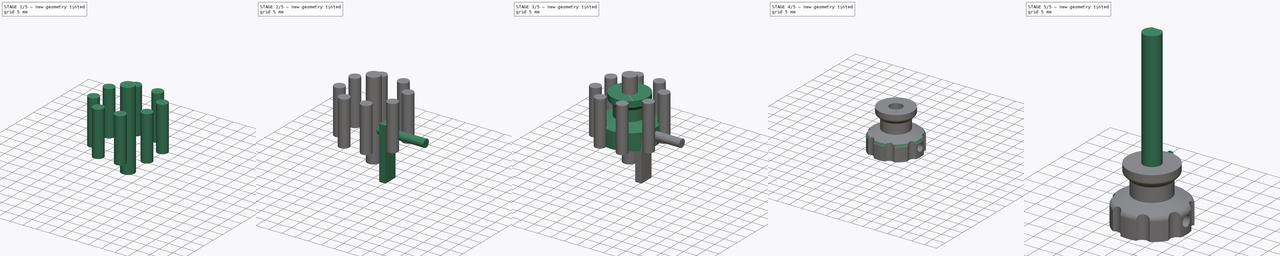
[diagram: build sequence overview — one tinted view per stage of 5, left to right]
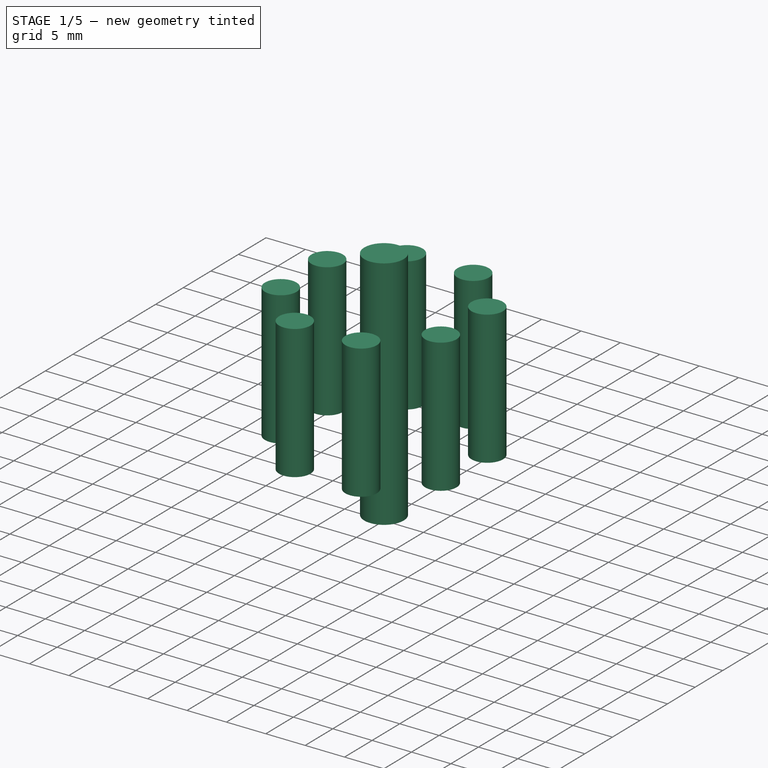
[diagram: stage 1 of 5 — iso view after this stage's code; geometry added in this stage tinted green]
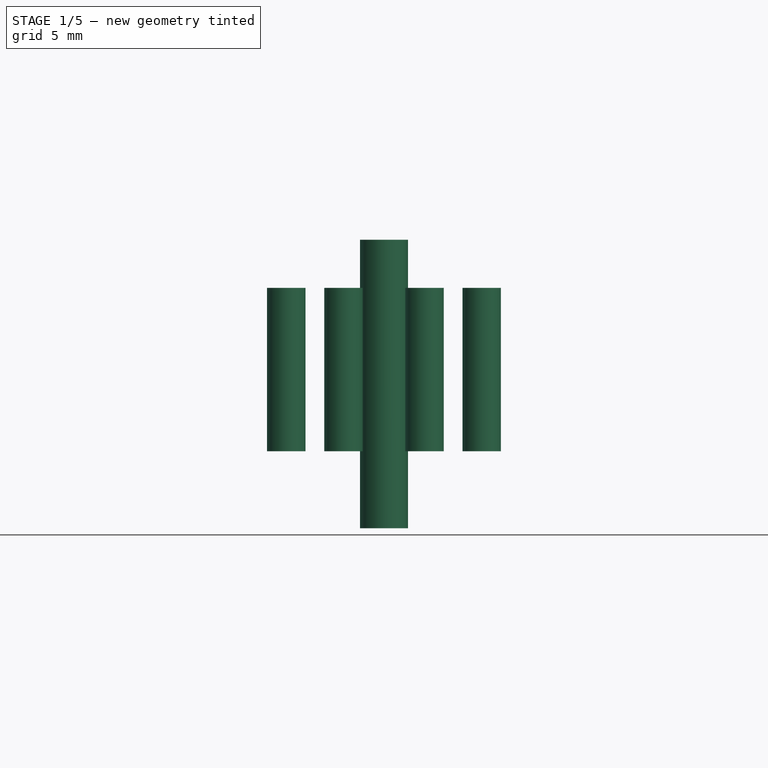
[diagram: stage 1 of 5 — front view after this stage's code; geometry added in this stage tinted green]
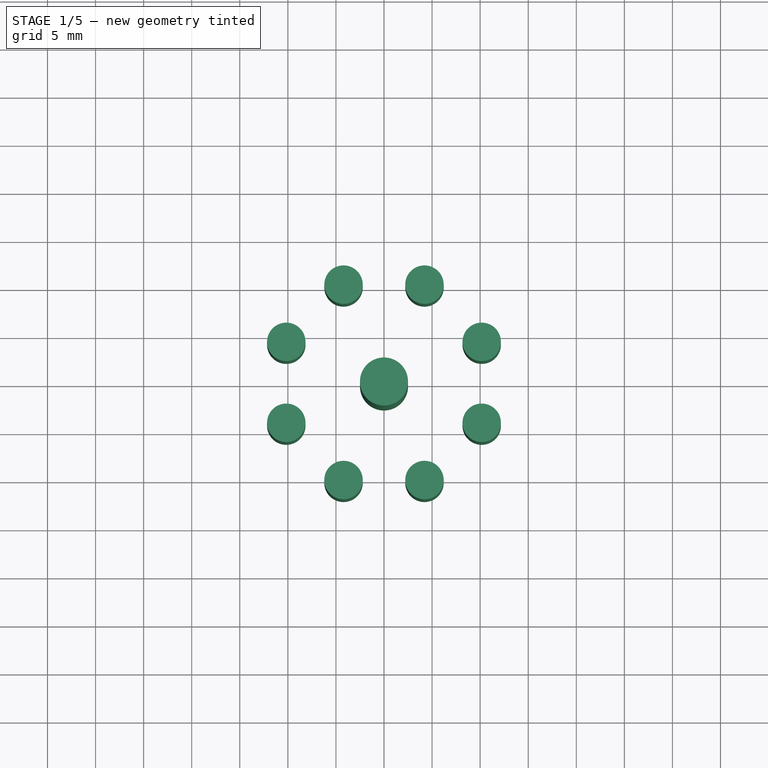
[diagram: stage 1 of 5 — top view after this stage's code; geometry added in this stage tinted green]
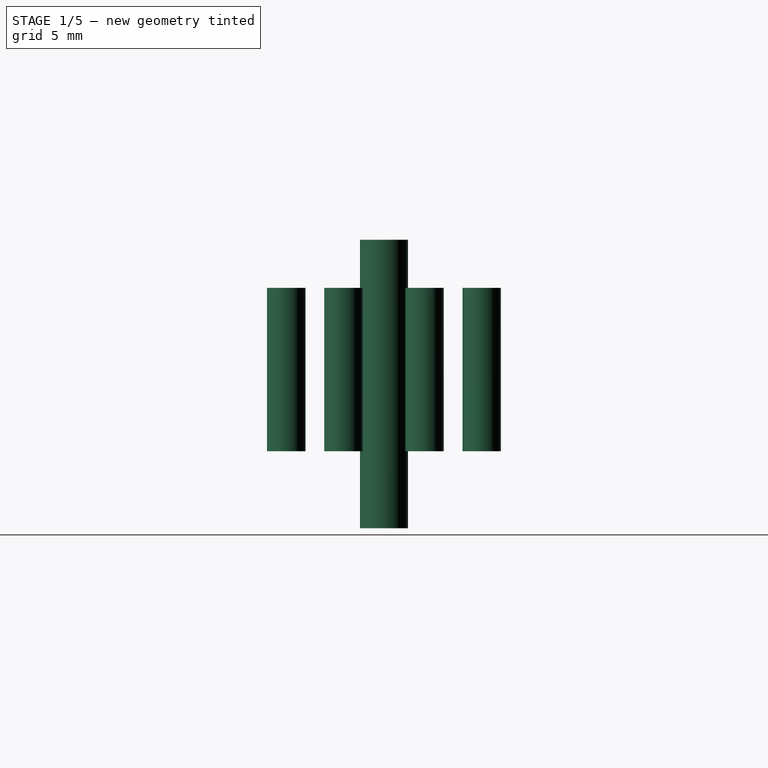
[diagram: stage 1 of 5 — right view after this stage's code; geometry added in this stage tinted green]
FCSTD DOCUMENT  (FreeCAD 0.16RUnknown)
Label: NEMAPulley
License: All rights reserved
LicenseURL: http://en.wikipedia.org/wiki/All_rights_reserved
objects: Part::FeaturePython×5, Part::Cylinder×3, Part::Extrusion×3, Sketcher::SketchObject×2, Part::Part2DObjectPython×2, App::DocumentObjectGroup×2, Part::Cut×2, Part::Box×1, PartDesign::Revolution×1, Part::Fillet×1, Part::MultiFuse×1
note: 22 computed .brp shape members not serialized (recipe doc carries the construction recipe); baked Part::Feature solids carry a one-line shape summary decoded from their .brp

FEATURE [Sketcher::SketchObject] Sketch001  label="BodyProfile"
  Placement = pos=(0,0,0) rot=(1,0,0;1.5708rad)
  sketch-geometry (9):
    g0: LineSegment StartX=0 StartY=16 StartZ=0 EndX=7 EndY=16 EndZ=0
    g1: LineSegment StartX=7 StartY=16 StartZ=0 EndX=7 EndY=13.6948 EndZ=0
    g2: LineSegment StartX=10 StartY=6.29122 StartZ=0 EndX=10 EndY=0 EndZ=0
    g3: LineSegment StartX=10 StartY=0 StartZ=0 EndX=0 EndY=0 EndZ=0
    g4: LineSegment StartX=0 StartY=0 StartZ=0 EndX=0 EndY=16 EndZ=0
    g5: LineSegment StartX=7 StartY=13.6948 StartZ=0 EndX=5.30516 EndY=12 EndZ=0
    g6: LineSegment StartX=5.30516 StartY=12 StartZ=0 EndX=5.30516 EndY=8 EndZ=0
    g7: LineSegment StartX=5.30516 StartY=8 StartZ=0 EndX=10 EndY=6.29122 EndZ=0
    g8: GeomPoint [constr] X=5.30516 Y=10 Z=0
  constraints (25):
    c: Coincident(g0,g1)
    c: Coincident(g2,g3)
    c: Coincident(g3,g4)
    c: Coincident(g4,g0)
    c: Vertical(g4)
    c: Vertical(g1)
    c: Vertical(g2)
    c: Horizontal(g3)
    c: Horizontal(g0)
    c: PointOnObject(g0,g-2)
    c: Coincident(g3,g-1)
    c: DistanceY(g4) = 16
    c: DistanceX(g3,g3) = 10
    c: Coincident(g5,g6)
    c: Coincident(g6,g7)
    c: Coincident(g7,g2)
    c: Coincident(g5,g1)
    c: Vertical(g6)
    c: Symmetric(g5,g6,g8)
    c: DistanceX(g8) = 5.30516
    c: DistanceY(g8) = 10
    c: DistanceY(g6,g6) = 4
    c: DistanceX(g0,g0) = 7
    c: Angle(g1,g5) = 2.35619
    c: Angle(g7) = -0.349066
FEATURE [Part::Cylinder] Cylinder001  label="NEMAShaft"
  Angle = 360
  Height = 30
  Placement = pos=(0,0,-8) rot=(0,0,1;0rad)
  Radius = 2.5
FEATURE [Part::Cylinder] Cylinder  label="FingerGroove"
  Angle = 360
  Height = 17
  Placement = pos=(0,11,0) rot=(0,0,1;0rad)
  Radius = 2
FEATURE [Part::FeaturePython] Array  label="Grooves"  # Draft array (typed FeaturePython)
  Angle = 360
  ArrayType = 1
  Axis = (0,0,1)
  Base = -> Cylinder
  Center = (0,0,0)
  Fuse = false
  IntervalAxis = (0,0,0)
  IntervalX = (1,0,0)
  IntervalY = (0,1,0)
  IntervalZ = (0,0,0)
  NumberPolar = 8
  NumberX = 2
  NumberY = 2
  NumberZ = 1
  Placement = pos=(0,0,0) rot=(0,0,1;0.392699rad)
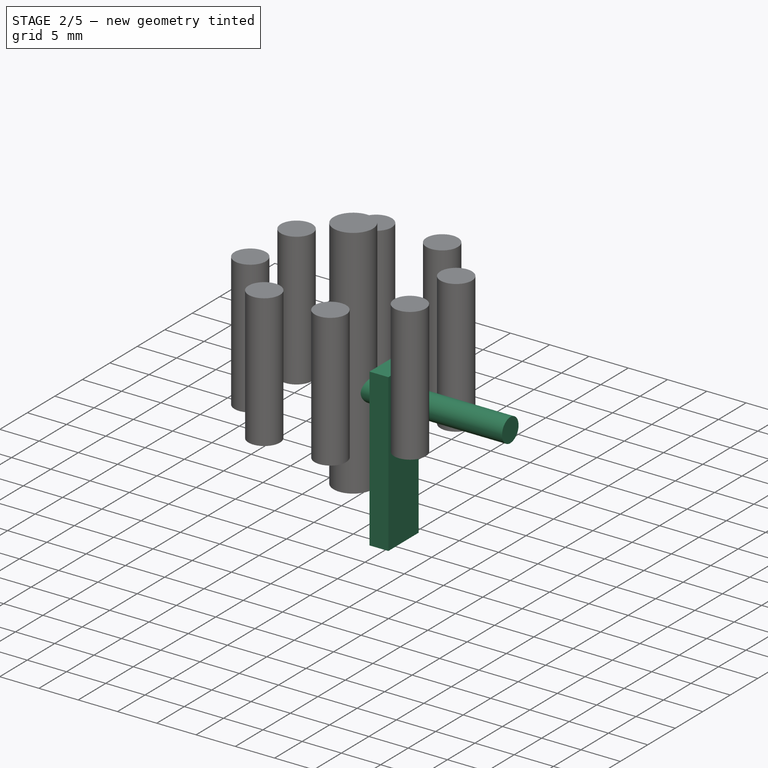
[diagram: stage 2 of 5 — iso view after this stage's code; geometry added in this stage tinted green]
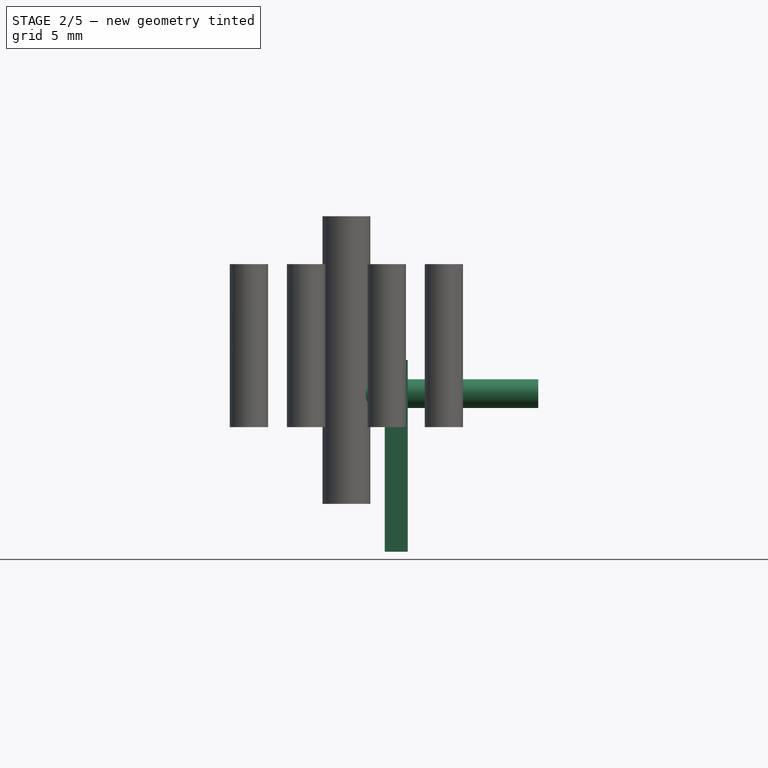
[diagram: stage 2 of 5 — front view after this stage's code; geometry added in this stage tinted green]
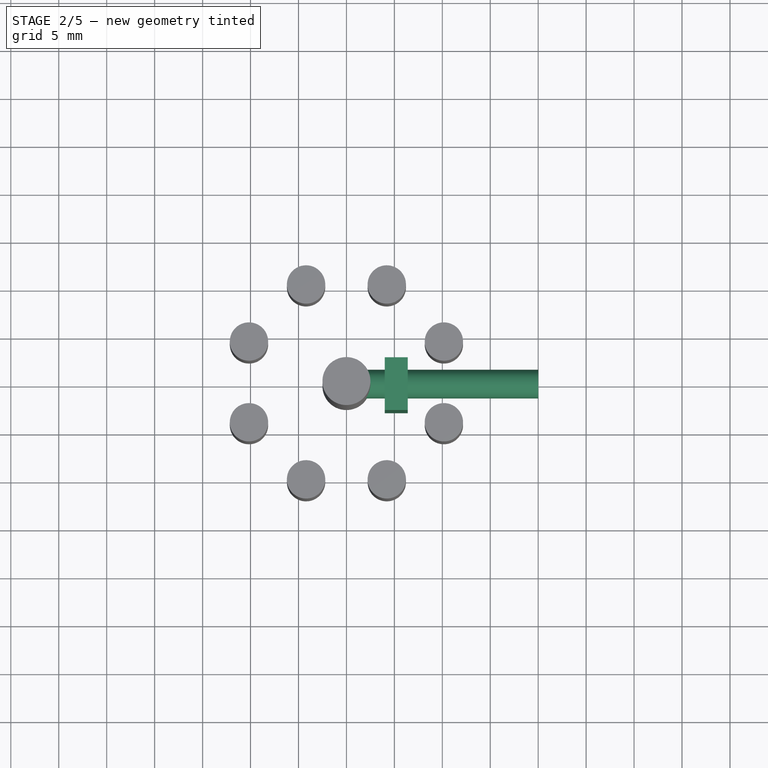
[diagram: stage 2 of 5 — top view after this stage's code; geometry added in this stage tinted green]
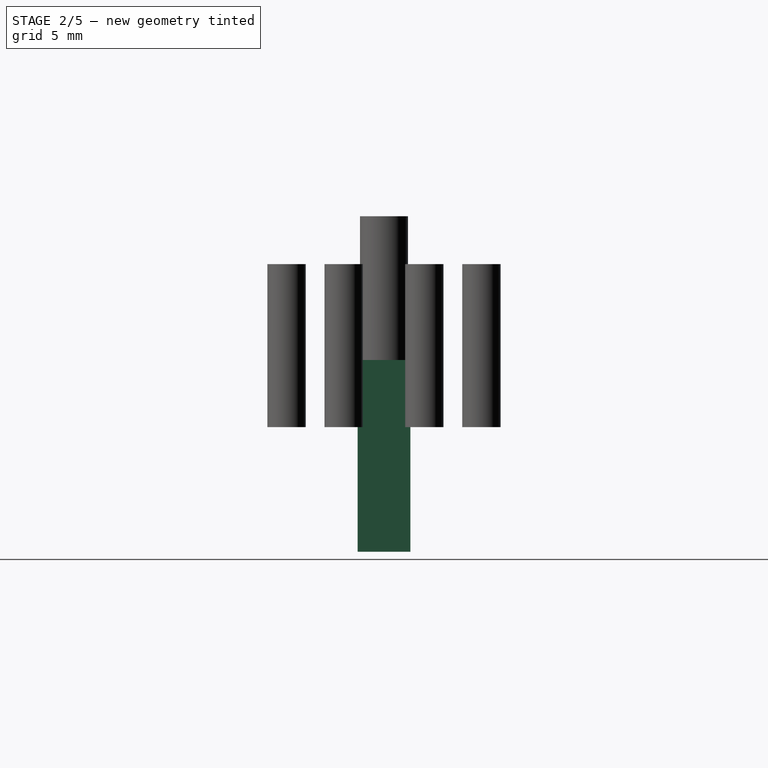
[diagram: stage 2 of 5 — right view after this stage's code; geometry added in this stage tinted green]
FEATURE [Part::Cylinder] Cylinder002  label="Bolt"
  Angle = 360
  Height = 20
  Placement = pos=(0,0,3.5) rot=(0,1,0;1.5708rad)
  Radius = 1.5
FEATURE [Part::Box] Box  label="NutSlot"
  Height = 20
  Length = 2.4
  Placement = pos=(4,-2.75,-13) rot=(0,0,1;0rad)
  Width = 5.5
FEATURE [Part::FeaturePython] Clone001  label="Clone of Bolt"  # Draft clone (typed FeaturePython)
  Objects = -> [Cylinder002]
  Placement = pos=(0,0,3.5) rot=(0,1,0;1.5708rad)
  Scale = (1,1,1)
FEATURE [Part::FeaturePython] Clone002  label="Clone of NEMAShaft"  # Draft clone (typed FeaturePython)
  Objects = -> [Cylinder001]
  Placement = pos=(0,0,-8) rot=(0,0,1;0rad)
  Scale = (1,1,1)
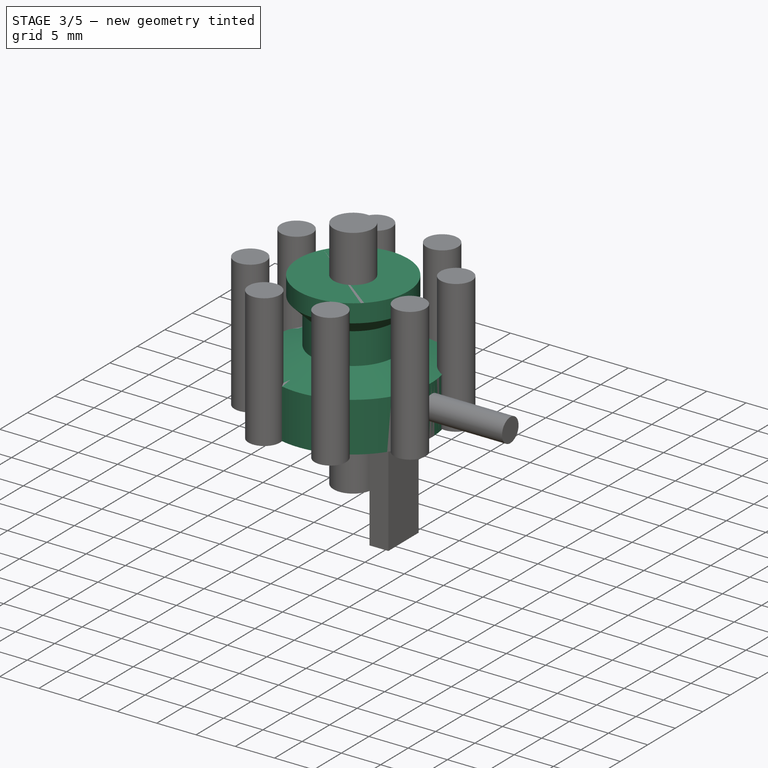
[diagram: stage 3 of 5 — iso view after this stage's code; geometry added in this stage tinted green]
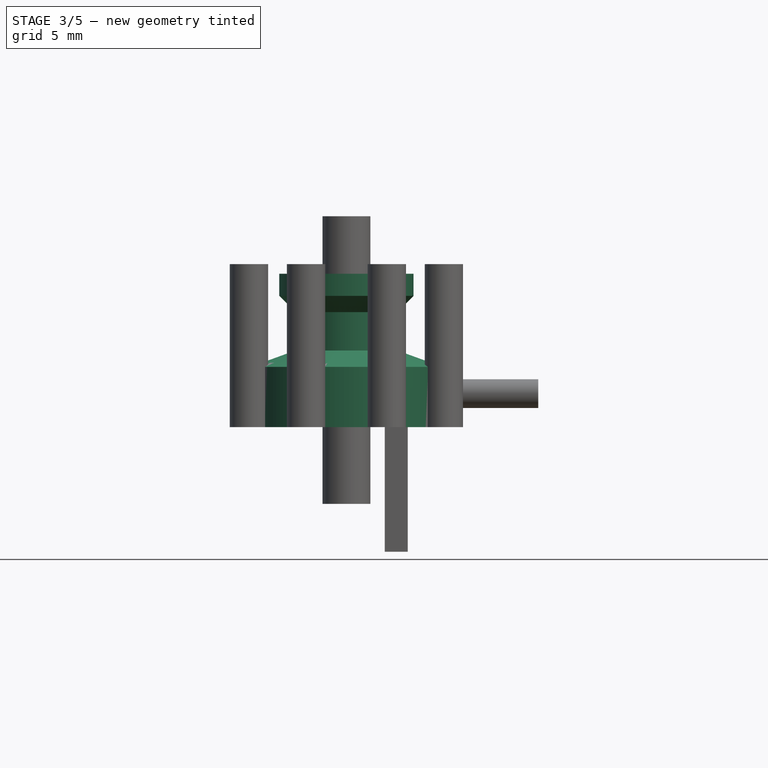
[diagram: stage 3 of 5 — front view after this stage's code; geometry added in this stage tinted green]
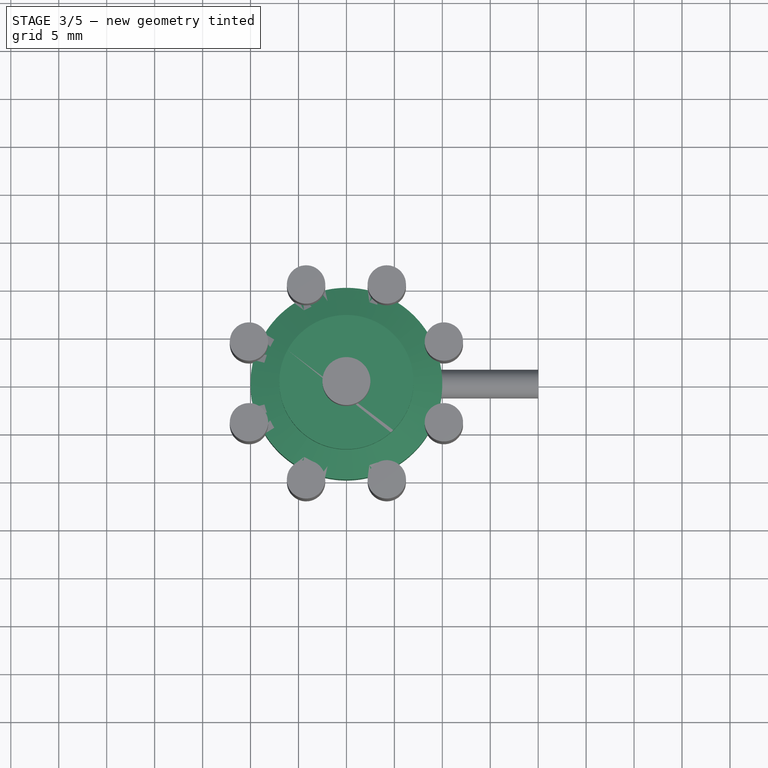
[diagram: stage 3 of 5 — top view after this stage's code; geometry added in this stage tinted green]
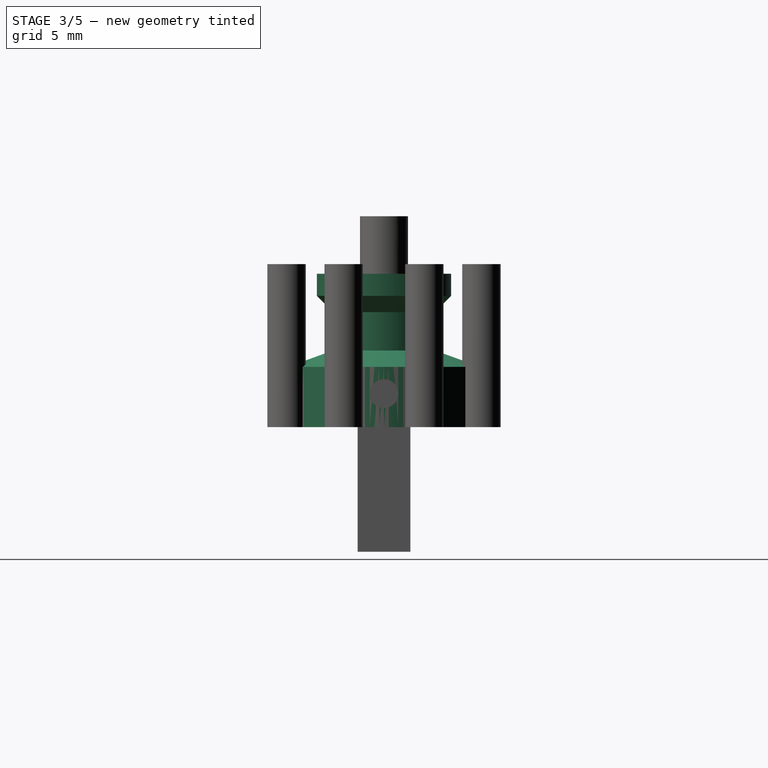
[diagram: stage 3 of 5 — right view after this stage's code; geometry added in this stage tinted green]
FEATURE [App::DocumentObjectGroup] Group  label="Cuts_src"
  Group = -> [Extrude002,Box,Cylinder002,Cylinder001,Extrude,Extrude001]
FEATURE [PartDesign::Revolution] Revolution  label="MainBody"
  Angle = 360
  Axis = (0,0,1)
  Base = (0,0,0)
  Placement = pos=(0,0,0) rot=(1,0,0;1.5708rad)
  ReferenceAxis = -> Sketch001 [V_Axis]
  Reversed = true
  Sketch = -> Sketch001
FEATURE [Part::FeaturePython] Clone  label="Clone of NutSlot"  # Draft clone (typed FeaturePython)
  Objects = -> [Box]
  Placement = pos=(4,-2.75,-13) rot=(0,0,1;0rad)
  Scale = (1,1,1)
FEATURE [Part::MultiFuse] Fusion  label="InnerCavity"
  Shapes = -> [Clone,Clone001,Clone002]
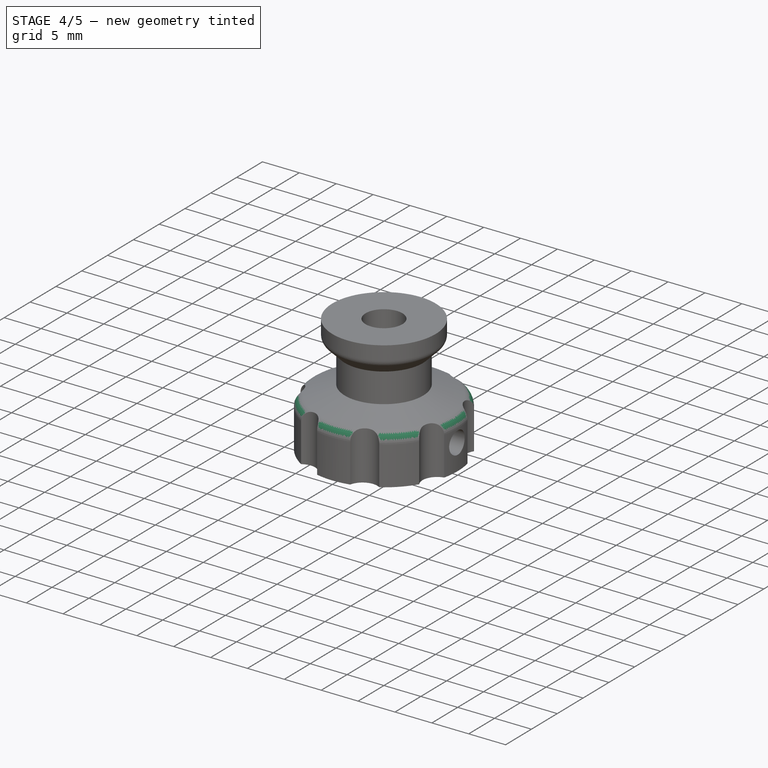
[diagram: stage 4 of 5 — iso view after this stage's code; geometry added in this stage tinted green]
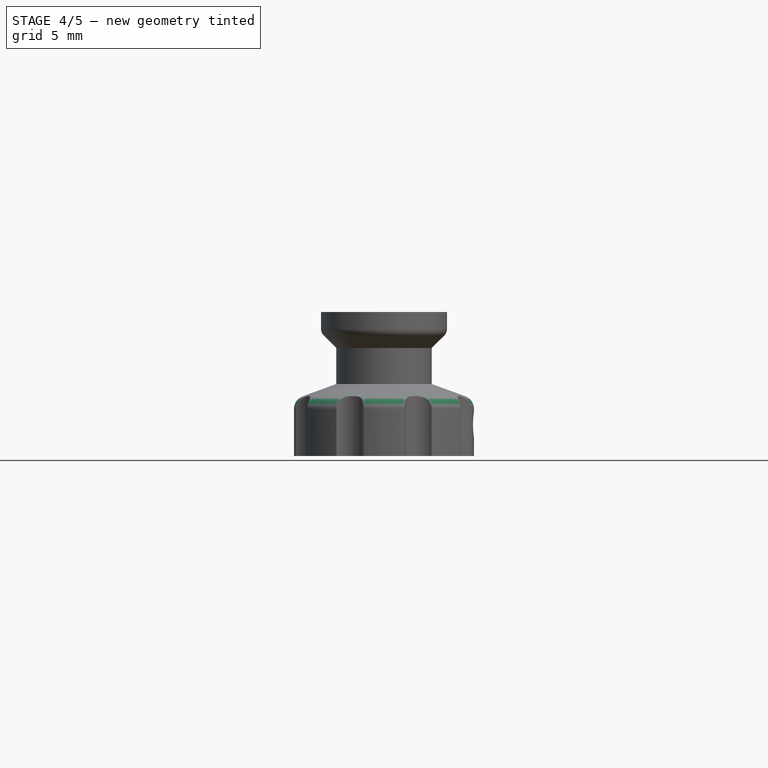
[diagram: stage 4 of 5 — front view after this stage's code; geometry added in this stage tinted green]
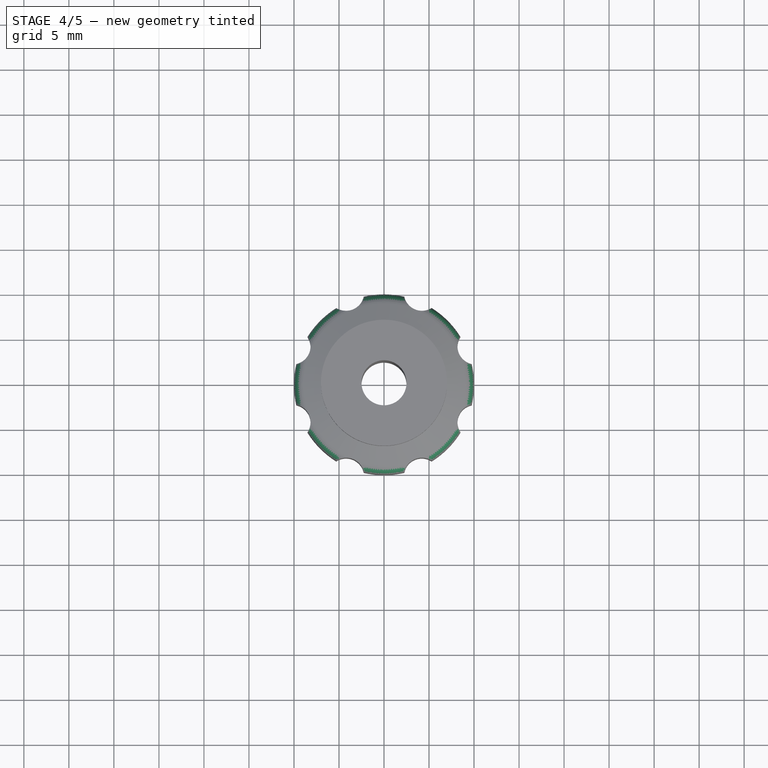
[diagram: stage 4 of 5 — top view after this stage's code; geometry added in this stage tinted green]
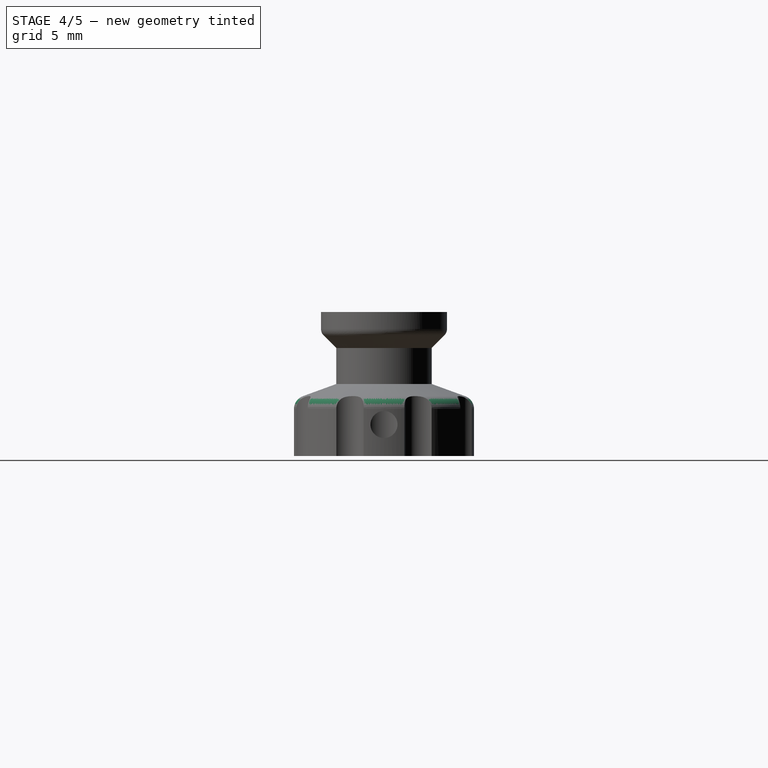
[diagram: stage 4 of 5 — right view after this stage's code; geometry added in this stage tinted green]
FEATURE [Part::Fillet] Fillet
  Base = -> Revolution
  Edges = 2 edges: [Edge2 r=1,Edge8 r=1.5]
FEATURE [Part::Cut] Cut  label="InnerCavityCut"
  Base = -> Fillet
  Tool = -> Fusion
FEATURE [Part::Cut] Cut003  label="GrooveCut"
  Base = -> Cut
  Tool = -> Array
FEATURE [App::DocumentObjectGroup] Group001  label="src"
  Group = -> [Cut003]
FEATURE [Part::FeaturePython] Clone003  label="NEMAPulley"  # Draft clone (typed FeaturePython)
  Objects = -> [Cut003]
  Scale = (1,1,1)
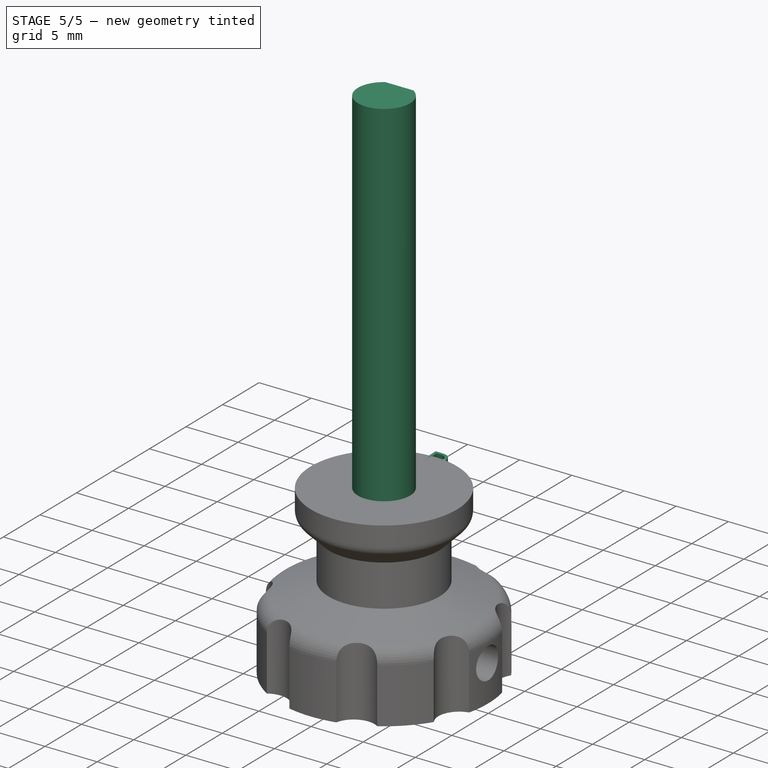
[diagram: stage 5 of 5 — iso view after this stage's code; geometry added in this stage tinted green]
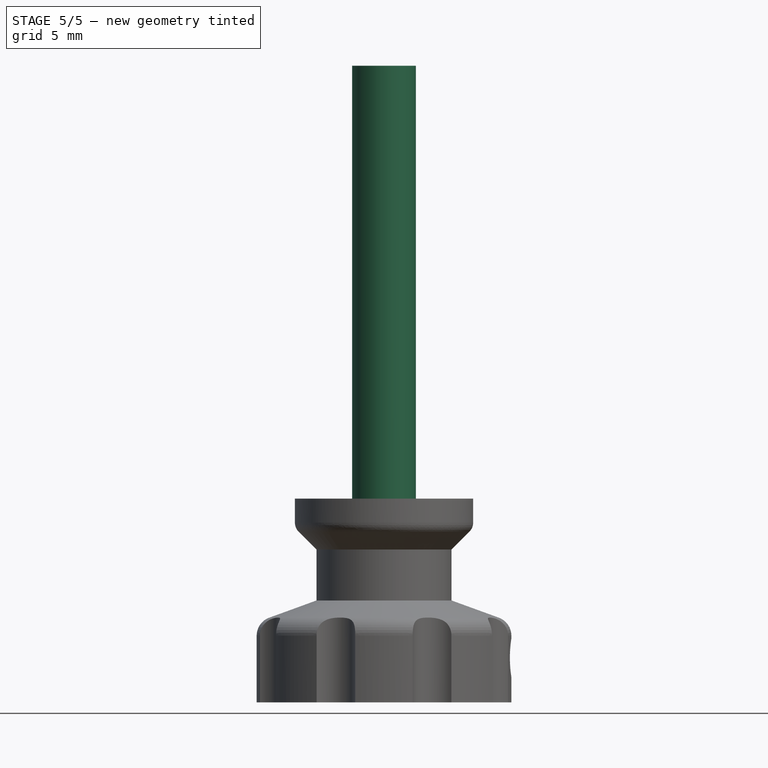
[diagram: stage 5 of 5 — front view after this stage's code; geometry added in this stage tinted green]
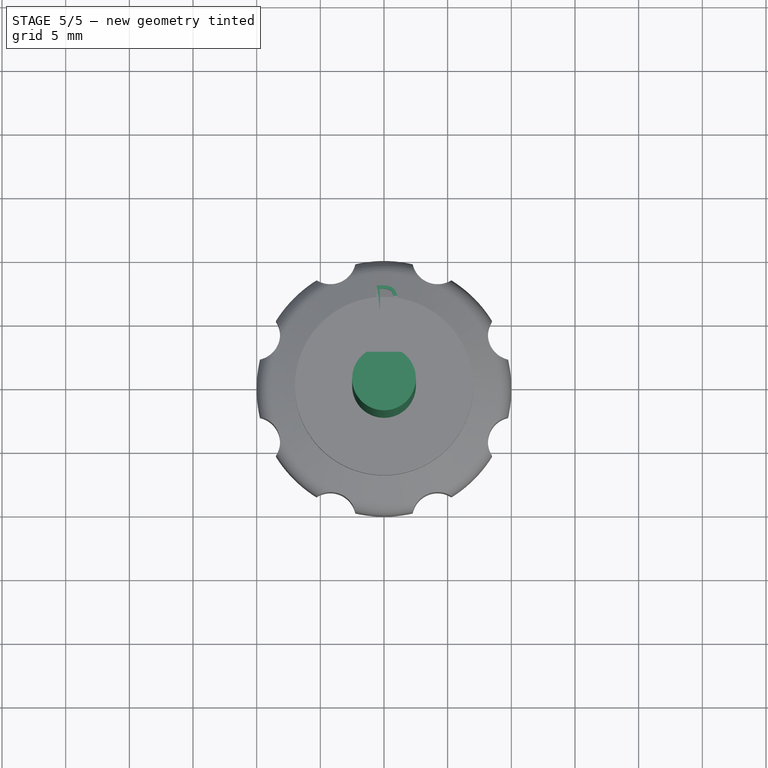
[diagram: stage 5 of 5 — top view after this stage's code; geometry added in this stage tinted green]
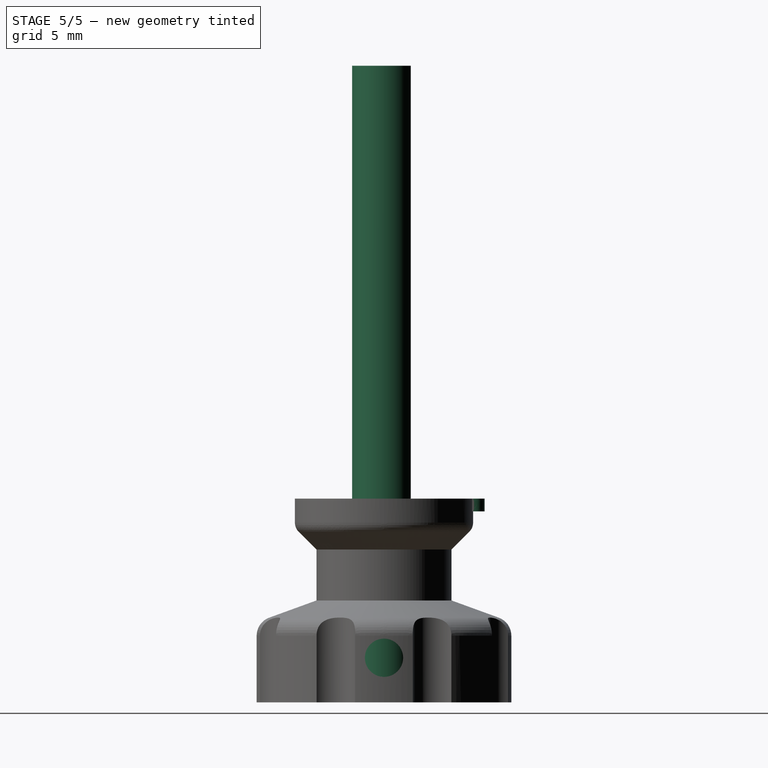
[diagram: stage 5 of 5 — right view after this stage's code; geometry added in this stage tinted green]
FEATURE [Part::Part2DObjectPython] ShapeString  label="R"  # Draft 2D object (typed FeaturePython)
  FontFile = <userpath>/Documents/Design/microspot/Mechanical/OpenSans-CondLight.ttf
  Placement = pos=(-1,3,16) rot=(0,0,1;0rad)
  Size = 5
  String = R
  Tracking = 0
FEATURE [Part::Part2DObjectPython] ShapeString001  label="L"  # Draft 2D object (typed FeaturePython)
  FontFile = <userpath>/Documents/Design/microspot/Mechanical/OpenSans-CondLight.ttf
  Placement = pos=(-1,3,16) rot=(0,0,1;0rad)
  Size = 5
  String = L
  Tracking = 0
FEATURE [Part::Extrusion] Extrude  label="LetterR"
  Base = -> ShapeString
  Dir = (0,0,-1)
  Placement = pos=(0,1,0) rot=(0,0,1;0rad)
  Solid = true
FEATURE [Part::Extrusion] Extrude001  label="LetterL"
  Base = -> ShapeString001
  Dir = (0,0,-1)
  Placement = pos=(0,1,0) rot=(0,0,1;0rad)
  Solid = true
FEATURE [Sketcher::SketchObject] Sketch002  label="NEMAShaft001"
  sketch-geometry (2):
    g0: ArcOfCircle CenterX=0 CenterY=0 CenterZ=0 NormalX=0 NormalY=0 NormalZ=1 Radius=2.5 StartAngle=2.14431 EndAngle=7.28047
    g1: LineSegment StartX=-1.35647 StartY=2.1 StartZ=0 EndX=1.35647 EndY=2.1 EndZ=0
  constraints (6):
    c: Coincident(g1,g0)
    c: Coincident(g1,g0)
    c: Coincident(g0,g-1)
    c: Horizontal(g1)
    c: Radius(g0) = 2.5
    c: DistanceY(g-1,g0) = 2.1
FEATURE [Part::Extrusion] Extrude002  label="NEMAShaft002"
  Base = -> Sketch002
  Dir = (0,0,50)
  Solid = true
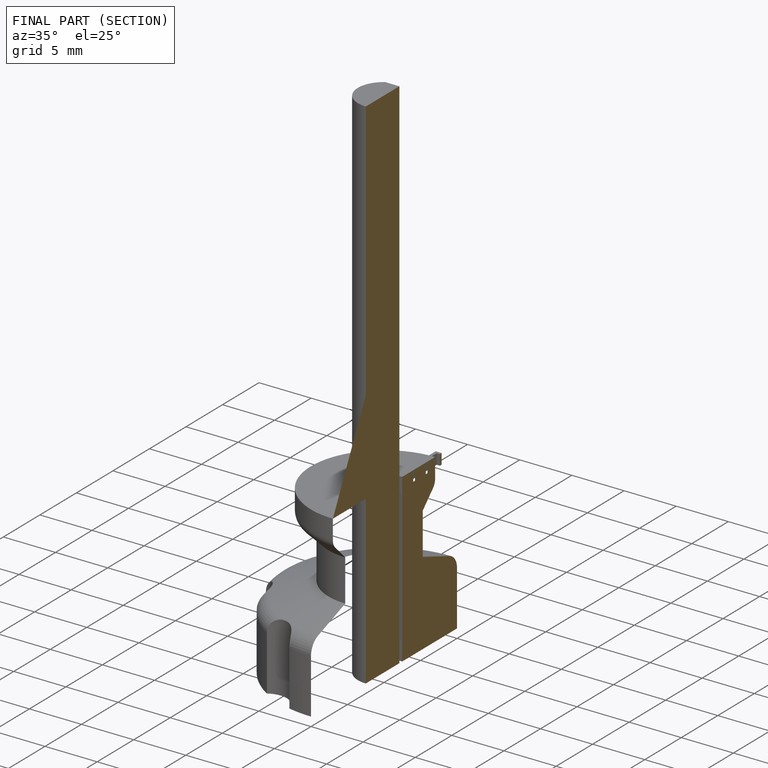
[diagram: finished part — half-section view (interior)]
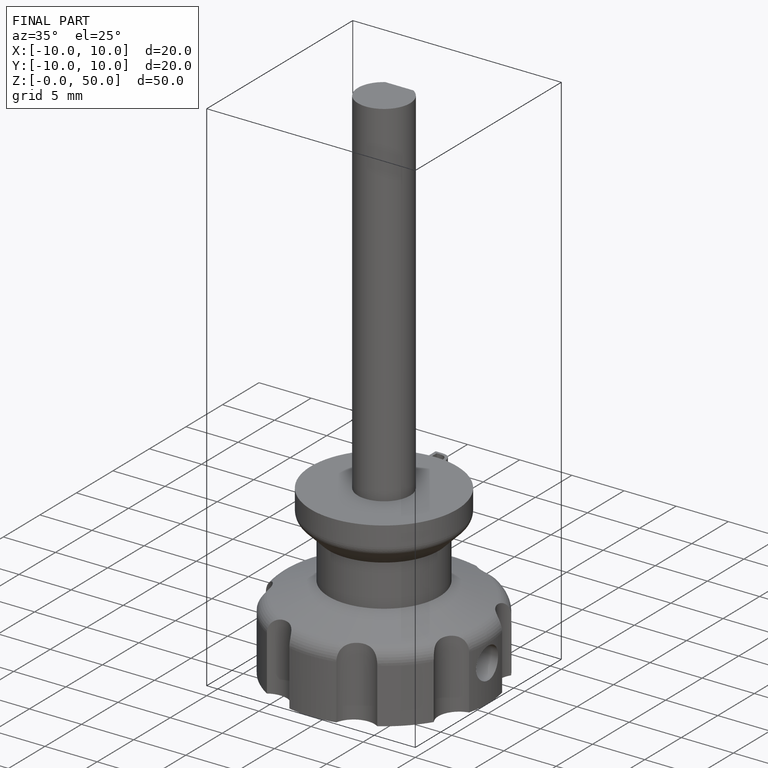
[diagram: finished part — iso view with bounding-box wireframe]
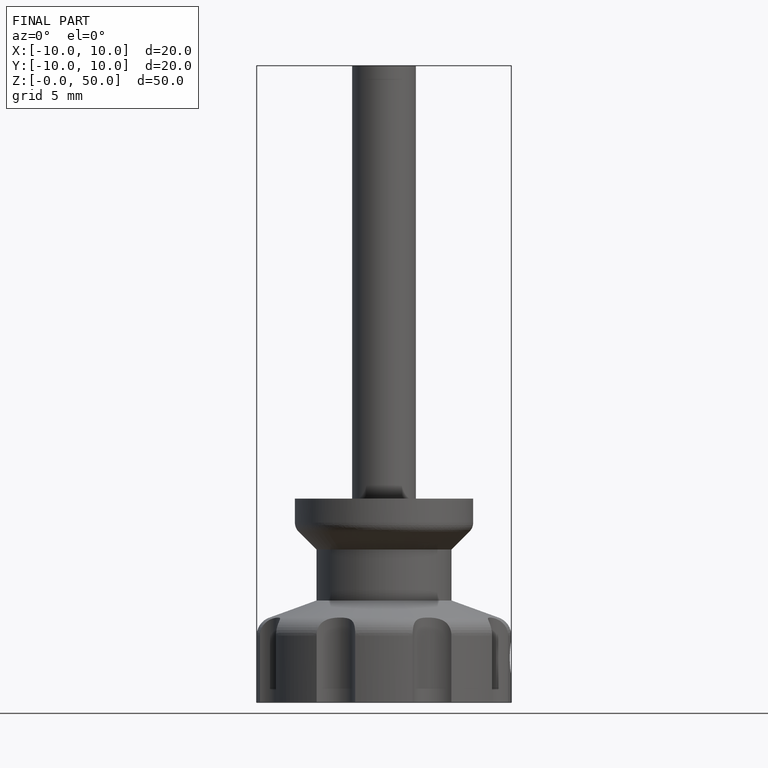
[diagram: finished part — front view with bounding-box wireframe]
